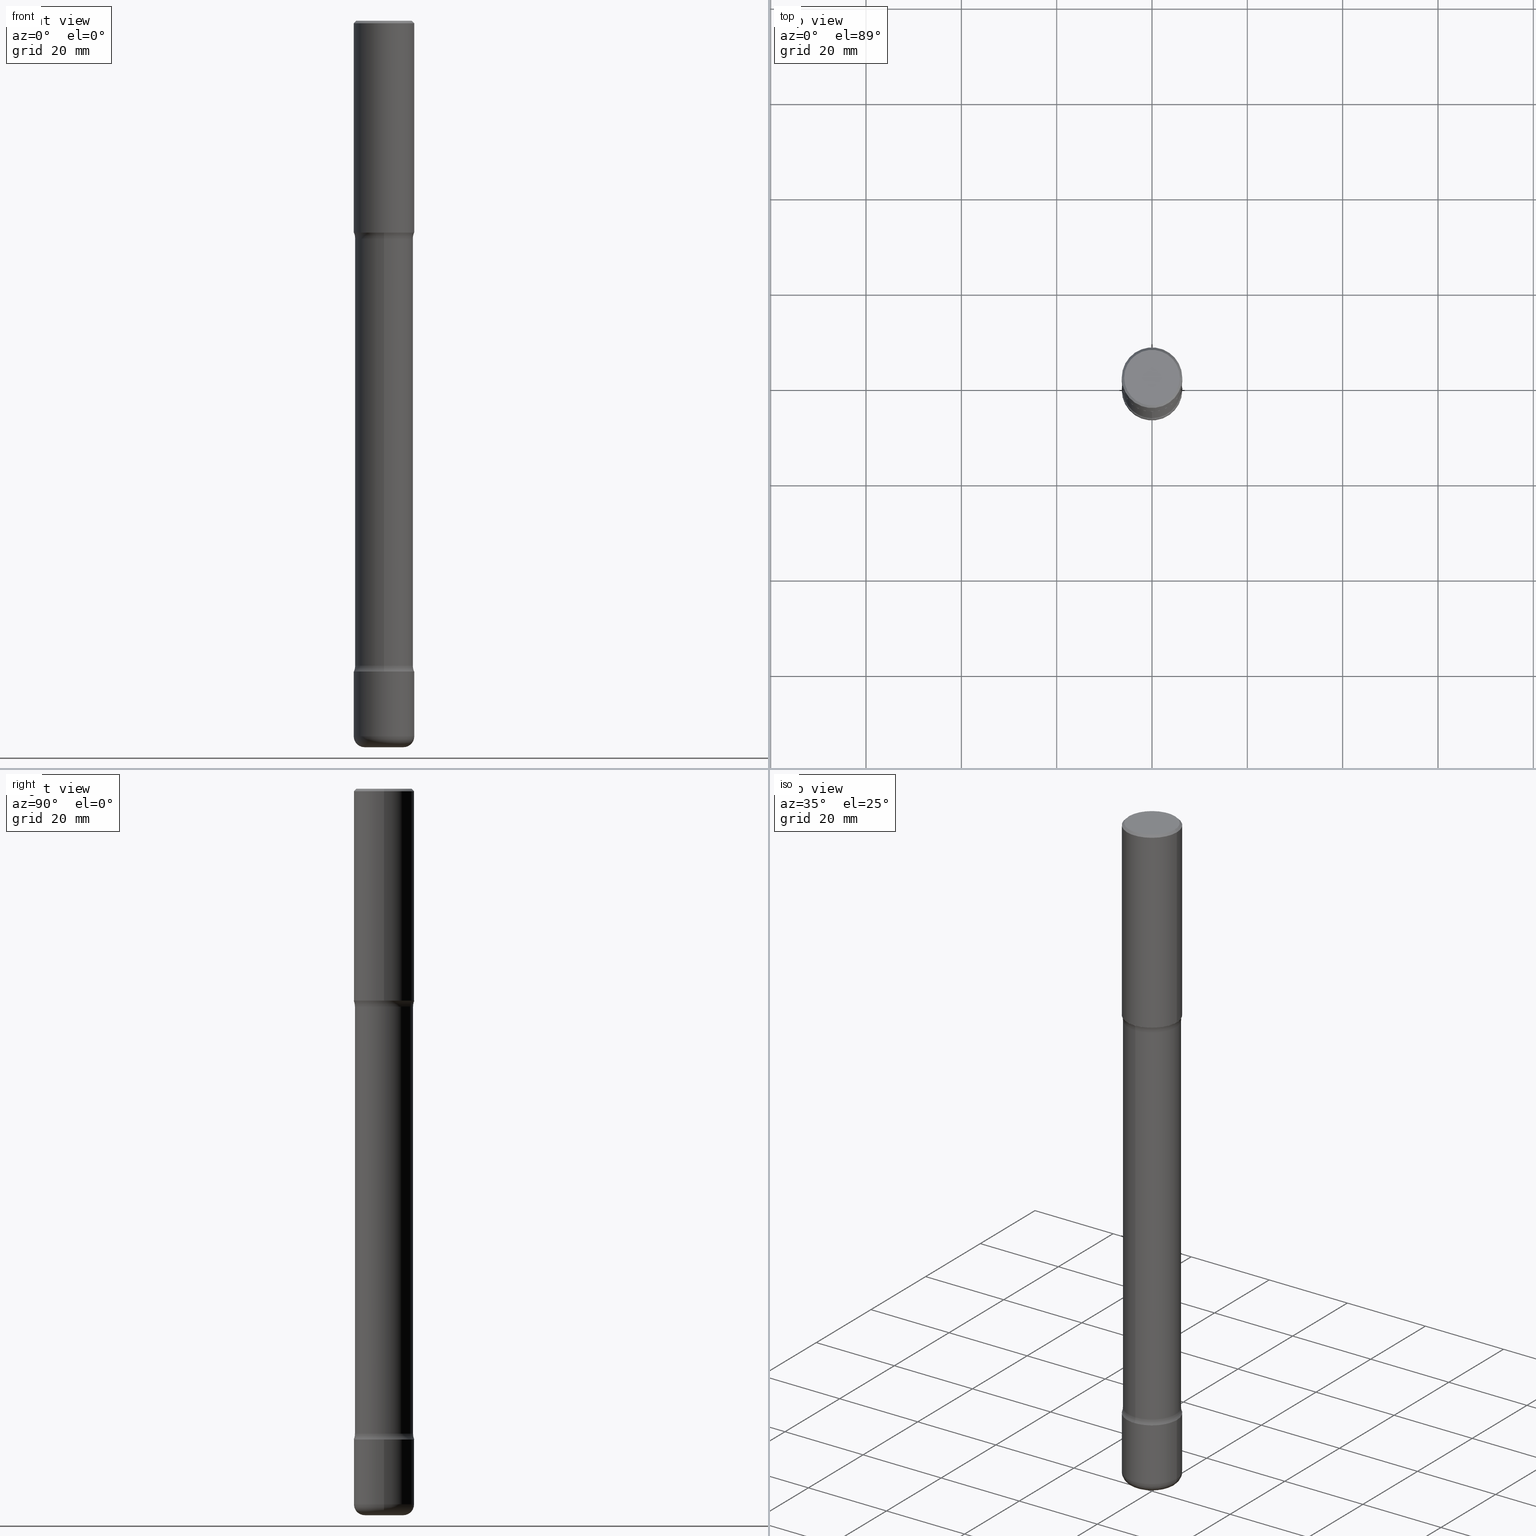
[diagram: canonical four-view strip — front | top / right | iso, engineering-drawing reading convention]
A machine part, canonical four-view strip (front | top / right | iso — engineering-drawing reading convention). The complete STEP part file that produces these views, byte-faithful:
ISO-10303-21;
HEADER;
FILE_DESCRIPTION (( 'STEP AP203' ),
    '1' );
FILE_NAME ('36249.STEP',
    '2024-03-01T23:42:03',
    ( '' ),
    ( '' ),
    'SwSTEP 2.0',
    'SolidWorks 2023',
    '' );
FILE_SCHEMA (( 'CONFIG_CONTROL_DESIGN' ));
ENDSEC;

DATA;
#1 = CYLINDRICAL_SURFACE ( 'NONE', #385, 0.2500000000000003886 ) ;
#2 = CARTESIAN_POINT ( 'NONE',  ( 1.745740669421699206E-15, 0.2499999999999814315, -5.375000000000002665 ) ) ;
#3 = DIRECTION ( 'NONE',  ( 1.000000000000000000, -6.982962677686262766E-15, 0.000000000000000000 ) ) ;
#4 = DIRECTION ( 'NONE',  ( 2.598079946832093802E-29, -3.272933499350004920E-15, -1.000000000000000000 ) ) ;
#5 = CIRCLE ( 'NONE', #384, 0.2300000000000001210 ) ;
#6 = AXIS2_PLACEMENT_3D ( 'NONE', #272, #423, #556 ) ;
#7 = CARTESIAN_POINT ( 'NONE',  ( 1.467281283711082406E-28, -2.094888803305887902E-14, -6.000000000000001776 ) ) ;
#8 = ORIENTED_EDGE ( 'NONE', *, *, #299, .F. ) ;
#9 = ADVANCED_FACE ( 'NONE', ( #391 ), #127, .F. ) ;
#10 = DIMENSIONAL_EXPONENTS ( 1.000000000000000000, 0.000000000000000000, 0.000000000000000000, 0.000000000000000000, 0.000000000000000000, 0.000000000000000000, 0.000000000000000000 ) ;
#11 =( CONVERSION_BASED_UNIT ( 'INCH', #524 ) LENGTH_UNIT ( ) NAMED_UNIT ( #10 ) );
#12 = DIRECTION ( 'NONE',  ( -1.000000000000000000, 6.982962677686265922E-15, -4.876176775795935793E-29 ) ) ;
#13 = MANIFOLD_SOLID_BREP ( 'Body-Move/Copy2[4]', #37 ) ;
#14 = CARTESIAN_POINT ( 'NONE',  ( 4.890937612370285420E-31, -6.982962677686308865E-17, -0.02000000000000005246 ) ) ;
#15 = EDGE_LOOP ( 'NONE', ( #78, #550, #253, #234 ) ) ;
#16 = COORDINATED_UNIVERSAL_TIME_OFFSET ( 5, 0, .BEHIND. ) ;
#17 = ADVANCED_FACE ( 'NONE', ( #40 ), #514, .T. ) ;
#18 = CIRCLE ( 'NONE', #191, 0.2500000000000005551 ) ;
#19 = DIRECTION ( 'NONE',  ( 6.982962677686265922E-15, 1.000000000000000000, -3.272933499350004525E-15 ) ) ;
#20 = AXIS2_PLACEMENT_3D ( 'NONE', #202, #296, #76 ) ;
#21 = EDGE_LOOP ( 'NONE', ( #316, #111 ) ) ;
#22 = MECHANICAL_CONTEXT ( 'NONE', #89, 'mechanical' ) ;
#23 = DIRECTION ( 'NONE',  ( -2.445468806185136597E-29, 3.491481338843145583E-15, 1.000000000000000000 ) ) ;
#24 = ORIENTED_EDGE ( 'NONE', *, *, #136, .F. ) ;
#25 = DATE_TIME_ROLE ( 'classification_date' ) ;
#26 = EDGE_CURVE ( 'NONE', #405, #397, #441, .T. ) ;
#27 = DATE_AND_TIME ( #188, #82 ) ;
#28 = ORIENTED_EDGE ( 'NONE', *, *, #160, .T. ) ;
#29 = AXIS2_PLACEMENT_3D ( 'NONE', #529, #226, #308 ) ;
#30 = LOCAL_TIME ( 18, 42, 3.000000000000000000, #537 ) ;
#31 = VERTEX_POINT ( 'NONE', #221 ) ;
#32 = EDGE_LOOP ( 'NONE', ( #526, #503, #411, #165 ) ) ;
#33 = CARTESIAN_POINT ( 'NONE',  ( 4.279570410823991847E-29, -6.110092342975509404E-15, -1.750000000000001332 ) ) ;
#34 = VERTEX_POINT ( 'NONE', #280 ) ;
#35 = ADVANCED_FACE ( 'NONE', ( #519 ), #61, .T. ) ;
#36 = CARTESIAN_POINT ( 'NONE',  ( 1.675911042644833344E-15, 0.2399999999999813116, -5.326010205144338983 ) ) ;
#37 = CLOSED_SHELL ( 'NONE', ( #460, #9, #352, #455, #246, #475, #211, #482 ) ) ;
#38 =( GEOMETRIC_REPRESENTATION_CONTEXT ( 3 ) GLOBAL_UNCERTAINTY_ASSIGNED_CONTEXT ( ( #295 ) ) GLOBAL_UNIT_ASSIGNED_CONTEXT ( ( #11, #274, #491 ) ) REPRESENTATION_CONTEXT ( 'NONE', 'WORKASPACE' ) );
#39 = DIRECTION ( 'NONE',  ( 6.982962677686265922E-15, 1.000000000000000000, -4.553079989440439881E-15 ) ) ;
#40 = FACE_OUTER_BOUND ( 'NONE', #321, .T. ) ;
#41 = EDGE_CURVE ( 'NONE', #158, #31, #453, .T. ) ;
#42 = CARTESIAN_POINT ( 'NONE',  ( -3.261302786302777691E-29, -4.226060494179454767E-14, -5.375000000000000888 ) ) ;
#43 = DIRECTION ( 'NONE',  ( -2.445468806185136597E-29, 3.491481338843145583E-15, 1.000000000000000000 ) ) ;
#44 = CIRCLE ( 'NONE', #362, 0.2500000000000001110 ) ;
#45 = DIRECTION ( 'NONE',  ( 2.598079946832093802E-29, -3.272933499350004525E-15, -1.000000000000000000 ) ) ;
#46 = AXIS2_PLACEMENT_3D ( 'NONE', #58, #230, #398 ) ;
#47 = VERTEX_POINT ( 'NONE', #275 ) ;
#48 = DIRECTION ( 'NONE',  ( -6.982962677686267499E-15, -1.000000000000000000, 0.000000000000000000 ) ) ;
#49 = DIRECTION ( 'NONE',  ( 2.598079946832093802E-29, -3.272933499350004920E-15, -1.000000000000000000 ) ) ;
#50 = PERSON_AND_ORGANIZATION_ROLE ( 'design_owner' ) ;
#51 = CARTESIAN_POINT ( 'NONE',  ( 1.467281283711082406E-28, -2.094888803305887902E-14, -6.000000000000001776 ) ) ;
#52 = LINE ( 'NONE', #189, #65 ) ;
#53 = EDGE_CURVE ( 'NONE', #251, #142, #225, .T. ) ;
#54 = AXIS2_PLACEMENT_3D ( 'NONE', #327, #242, #63 ) ;
#55 = APPROVAL_PERSON_ORGANIZATION ( #374, #540, #410 ) ;
#56 = PLANE ( 'NONE',  #278 ) ;
#57 = ORIENTED_EDGE ( 'NONE', *, *, #160, .F. ) ;
#58 = CARTESIAN_POINT ( 'NONE',  ( 0.000000000000000000, 0.000000000000000000, 0.000000000000000000 ) ) ;
#59 = DIRECTION ( 'NONE',  ( 1.000000000000000000, -6.982962677686267499E-15, 4.876176775795935793E-29 ) ) ;
#60 = ORIENTED_EDGE ( 'NONE', *, *, #113, .T. ) ;
#61 = PLANE ( 'NONE',  #522 ) ;
#62 = EDGE_CURVE ( 'NONE', #47, #371, #177, .T. ) ;
#63 = DIRECTION ( 'NONE',  ( 6.982962677686265922E-15, 1.000000000000000000, -3.272933499350004920E-15 ) ) ;
#64 = COORDINATED_UNIVERSAL_TIME_OFFSET ( 5, 0, .BEHIND. ) ;
#65 = VECTOR ( 'NONE', #438, 39.37007874015748854 ) ;
#66 = FACE_OUTER_BOUND ( 'NONE', #451, .T. ) ;
#67 = AXIS2_PLACEMENT_3D ( 'NONE', #269, #172, #471 ) ;
#68 = DIRECTION ( 'NONE',  ( -2.445468806185136597E-29, 3.491481338843145583E-15, 1.000000000000000000 ) ) ;
#69 = VERTEX_POINT ( 'NONE', #2 ) ;
#70 = SHAPE_DEFINITION_REPRESENTATION ( #458, #488 ) ;
#71 = ORIENTED_EDGE ( 'NONE', *, *, #325, .F. ) ;
#72 = ORIENTED_EDGE ( 'NONE', *, *, #543, .F. ) ;
#73 = AXIS2_PLACEMENT_3D ( 'NONE', #444, #4, #183 ) ;
#74 = SECURITY_CLASSIFICATION ( '', '', #527 ) ;
#75 = ORIENTED_EDGE ( 'NONE', *, *, #77, .F. ) ;
#76 = DIRECTION ( 'NONE',  ( 6.982962677686265922E-15, 1.000000000000000000, -3.278217592397102057E-15 ) ) ;
#77 = EDGE_CURVE ( 'NONE', #219, #112, #521, .T. ) ;
#78 = ORIENTED_EDGE ( 'NONE', *, *, #470, .T. ) ;
#79 = CARTESIAN_POINT ( 'NONE',  ( -1.680822009453992684E-15, -0.2400000000000076239, -1.798989794855665236 ) ) ;
#80 = DIRECTION ( 'NONE',  ( 1.000000000000000000, -6.860497997771530774E-15, 4.843475318745101421E-29 ) ) ;
#81 = CIRCLE ( 'NONE', #430, 0.2500000000000002776 ) ;
#82 = LOCAL_TIME ( 18, 42, 3.000000000000000000, #16 ) ;
#83 = CARTESIAN_POINT ( 'NONE',  ( 1.314439483324511369E-28, -1.876671219628191278E-14, -5.375000000000001776 ) ) ;
#84 = EDGE_CURVE ( 'NONE', #142, #150, #239, .T. ) ;
#85 = CYLINDRICAL_SURFACE ( 'NONE', #303, 0.2400000000000002409 ) ;
#86 = VERTEX_POINT ( 'NONE', #528 ) ;
#87 = DIRECTION ( 'NONE',  ( 2.598079946832093802E-29, -3.272933499350004920E-15, -1.000000000000000000 ) ) ;
#88 = DIRECTION ( 'NONE',  ( -2.445468806185136877E-29, 3.491481338843145188E-15, 1.000000000000000000 ) ) ;
#89 = APPLICATION_CONTEXT ( 'configuration controlled 3d designs of mechanical parts and assemblies' ) ;
#90 = DIRECTION ( 'NONE',  ( 1.000000000000000000, -6.982962677686267499E-15, 4.876176775795935793E-29 ) ) ;
#91 = VECTOR ( 'NONE', #88, 39.37007874015748143 ) ;
#92 = DIRECTION ( 'NONE',  ( 1.000000000000000000, -6.982962677686267499E-15, 4.876176775795936353E-29 ) ) ;
#93 = ORIENTED_EDGE ( 'NONE', *, *, #494, .F. ) ;
#94 = FACE_OUTER_BOUND ( 'NONE', #32, .T. ) ;
#95 = ADVANCED_FACE ( 'NONE', ( #354 ), #185, .T. ) ;
#96 = PERSON_AND_ORGANIZATION ( #379, #240 ) ;
#97 = CARTESIAN_POINT ( 'NONE',  ( 2.548781377355529317E-15, 0.3649999999999934408, -1.798989794855667235 ) ) ;
#98 = CARTESIAN_POINT ( 'NONE',  ( 0.000000000000000000, 0.000000000000000000, 0.000000000000000000 ) ) ;
#99 = EDGE_LOOP ( 'NONE', ( #409, #337, #190, #416 ) ) ;
#100 = DIRECTION ( 'NONE',  ( -2.445468806185136597E-29, 3.491481338843145583E-15, 1.000000000000000000 ) ) ;
#101 = DIRECTION ( 'NONE',  ( 2.598079946832093802E-29, -3.272933499350004525E-15, -1.000000000000000000 ) ) ;
#102 = AXIS2_PLACEMENT_3D ( 'NONE', #98, #196, #92 ) ;
#103 = EDGE_CURVE ( 'NONE', #251, #34, #406, .T. ) ;
#104 = APPROVAL_ROLE ( '' ) ;
#105 = DIRECTION ( 'NONE',  ( 2.598079946832093802E-29, -3.272933499350004920E-15, -1.000000000000000000 ) ) ;
#106 = PLANE ( 'NONE',  #118 ) ;
#107 = EDGE_LOOP ( 'NONE', ( #424, #349, #466, #227 ) ) ;
#108 = DATE_AND_TIME ( #181, #30 ) ;
#109 = DIRECTION ( 'NONE',  ( 1.000000000000000000, -6.982962677686273021E-15, 4.883557194083115143E-29 ) ) ;
#110 = AXIS2_PLACEMENT_3D ( 'NONE', #42, #304, #426 ) ;
#111 = ORIENTED_EDGE ( 'NONE', *, *, #510, .F. ) ;
#112 = VERTEX_POINT ( 'NONE', #215 ) ;
#113 = EDGE_CURVE ( 'NONE', #223, #47, #547, .T. ) ;
#114 = ORIENTED_EDGE ( 'NONE', *, *, #443, .F. ) ;
#115 = CALENDAR_DATE ( 2024, 1, 3 ) ;
#116 = EDGE_LOOP ( 'NONE', ( #195, #24 ) ) ;
#117 = ORIENTED_EDGE ( 'NONE', *, *, #169, .T. ) ;
#118 = AXIS2_PLACEMENT_3D ( 'NONE', #298, #420, #19 ) ;
#119 = CIRCLE ( 'NONE', #67, 0.2500000000000001110 ) ;
#120 = EDGE_CURVE ( 'NONE', #236, #86, #18, .T. ) ;
#121 = APPLICATION_CONTEXT ( 'configuration controlled 3d designs of mechanical parts and assemblies' ) ;
#122 = FACE_OUTER_BOUND ( 'NONE', #21, .T. ) ;
#123 = CARTESIAN_POINT ( 'NONE',  ( -0.1600000000000005584, -1.949778633534683129E-14, -5.910000000000001030 ) ) ;
#124 = ORIENTED_EDGE ( 'NONE', *, *, #257, .T. ) ;
#125 = DIRECTION ( 'NONE',  ( 2.438088387897960049E-29, -3.491481338843145188E-15, -1.000000000000000000 ) ) ;
#126 = EDGE_CURVE ( 'NONE', #251, #405, #421, .T. ) ;
#127 = TOROIDAL_SURFACE ( 'NONE', #156, 0.3650000000000001577, 0.1250000000000000555 ) ;
#128 = CC_DESIGN_SECURITY_CLASSIFICATION ( #74, ( #498 ) ) ;
#129 = FACE_OUTER_BOUND ( 'NONE', #330, .T. ) ;
#130 = ORIENTED_EDGE ( 'NONE', *, *, #283, .T. ) ;
#131 = LINE ( 'NONE', #473, #91 ) ;
#132 = CARTESIAN_POINT ( 'NONE',  ( 2.548781377355618064E-15, 0.3649999999999815614, -5.326010205144338983 ) ) ;
#133 = CARTESIAN_POINT ( 'NONE',  ( 1.314439483324511369E-28, -1.876671219628191278E-14, -5.375000000000001776 ) ) ;
#134 = ORIENTED_EDGE ( 'NONE', *, *, #113, .F. ) ;
#135 = EDGE_LOOP ( 'NONE', ( #60, #297 ) ) ;
#136 = EDGE_CURVE ( 'NONE', #205, #483, #467, .T. ) ;
#137 = CLOSED_SHELL ( 'NONE', ( #95, #198, #35, #241, #393, #381 ) ) ;
#138 = CARTESIAN_POINT ( 'NONE',  ( 1.745740669421611445E-15, 0.2499999999999941158, -1.750000000000001998 ) ) ;
#139 = VECTOR ( 'NONE', #45, 39.37007874015748143 ) ;
#140 = ORIENTED_EDGE ( 'NONE', *, *, #494, .T. ) ;
#141 = DATE_AND_TIME ( #194, #363 ) ;
#142 = VERTEX_POINT ( 'NONE', #254 ) ;
#143 = DIRECTION ( 'NONE',  ( -2.445468806185136597E-29, 3.491481338843145583E-15, 1.000000000000000000 ) ) ;
#144 = PRODUCT_DEFINITION ( 'UNKNOWN', '', #498, #344 ) ;
#145 = DIRECTION ( 'NONE',  ( 1.000000000000000000, -6.982962677686265922E-15, 4.876176775795935793E-29 ) ) ;
#146 = DIRECTION ( 'NONE',  ( 6.982962677686265922E-15, 1.000000000000000000, -4.370956789862816416E-15 ) ) ;
#147 = AXIS2_PLACEMENT_3D ( 'NONE', #545, #206, #109 ) ;
#148 = AXIS2_PLACEMENT_3D ( 'NONE', #383, #554, #212 ) ;
#149 = CARTESIAN_POINT ( 'NONE',  ( 3.874772629991013764E-29, -7.032397495765489425E-15, -1.798989794855666124 ) ) ;
#150 = VERTEX_POINT ( 'NONE', #36 ) ;
#151 = PERSON_AND_ORGANIZATION ( #379, #240 ) ;
#152 = DIRECTION ( 'NONE',  ( 1.000000000000000000, -6.982962677686267499E-15, 0.000000000000000000 ) ) ;
#153 = APPLICATION_PROTOCOL_DEFINITION ( 'international standard', 'config_control_design', 1994, #89 ) ;
#154 = DIRECTION ( 'NONE',  ( -6.982962677686266711E-15, -1.000000000000000000, 3.491481338843145583E-15 ) ) ;
#155 = ADVANCED_FACE ( 'NONE', ( #208 ), #511, .T. ) ;
#156 = AXIS2_PLACEMENT_3D ( 'NONE', #213, #311, #435 ) ;
#157 = PRODUCT ( '36249', '36249', '', ( #22 ) ) ;
#158 = VERTEX_POINT ( 'NONE', #392 ) ;
#159 = ORIENTED_EDGE ( 'NONE', *, *, #291, .T. ) ;
#160 = EDGE_CURVE ( 'NONE', #318, #69, #555, .T. ) ;
#161 = CARTESIAN_POINT ( 'NONE',  ( 1.314439483324511369E-28, -1.876671219628191278E-14, -5.375000000000001776 ) ) ;
#162 = CIRCLE ( 'NONE', #541, 0.1600000000000005584 ) ;
#163 = CC_DESIGN_DATE_AND_TIME_ASSIGNMENT ( #27, #25, ( #74 ) ) ;
#164 = CARTESIAN_POINT ( 'NONE',  ( -1.715124499442752926E-15, -0.2500000000000189293, -5.375000000000000888 ) ) ;
#165 = ORIENTED_EDGE ( 'NONE', *, *, #335, .T. ) ;
#166 = CARTESIAN_POINT ( 'NONE',  ( 0.1600000000000005584, -2.206616206148868232E-14, -6.000000000000001776 ) ) ;
#167 = DIRECTION ( 'NONE',  ( 1.000000000000000000, -6.982962677686262766E-15, 0.000000000000000000 ) ) ;
#168 = PLANE ( 'NONE',  #248 ) ;
#169 = EDGE_CURVE ( 'NONE', #223, #112, #52, .T. ) ;
#170 = AXIS2_PLACEMENT_3D ( 'NONE', #133, #310, #485 ) ;
#171 = APPROVAL_PERSON_ORGANIZATION ( #151, #340, #481 ) ;
#172 = DIRECTION ( 'NONE',  ( -2.445468806185136597E-29, 3.491481338843145583E-15, 1.000000000000000000 ) ) ;
#173 = DIRECTION ( 'NONE',  ( -2.445468806185136597E-29, 3.491481338843145583E-15, 1.000000000000000000 ) ) ;
#174 = CARTESIAN_POINT ( 'NONE',  ( 1.314439483324511369E-28, -1.876671219628191278E-14, -5.375000000000001776 ) ) ;
#175 = ADVANCED_FACE ( 'NONE', ( #315 ), #56, .F. ) ;
#176 = DIRECTION ( 'NONE',  ( -1.000000000000000000, 7.105427357601017636E-15, 0.000000000000000000 ) ) ;
#177 = LINE ( 'NONE', #433, #497 ) ;
#178 = DIRECTION ( 'NONE',  ( 2.445468806185136597E-29, -3.491481338843145583E-15, -1.000000000000000000 ) ) ;
#179 = ORIENTED_EDGE ( 'NONE', *, *, #373, .T. ) ;
#180 = AXIS2_PLACEMENT_3D ( 'NONE', #14, #178, #358 ) ;
#181 = CALENDAR_DATE ( 2024, 1, 3 ) ;
#182 = CIRCLE ( 'NONE', #523, 0.2500000000000010547 ) ;
#183 = DIRECTION ( 'NONE',  ( 6.982962677686265922E-15, 1.000000000000000000, -4.553079989440439881E-15 ) ) ;
#184 = DIRECTION ( 'NONE',  ( 1.000000000000000000, -6.982962677686273021E-15, 4.883557194083115143E-29 ) ) ;
#185 = CYLINDRICAL_SURFACE ( 'NONE', #329, 0.2500000000000003886 ) ;
#186 = EDGE_CURVE ( 'NONE', #318, #142, #286, .T. ) ;
#187 = DIRECTION ( 'NONE',  ( -2.438088387897960049E-29, 3.491481338843145188E-15, 1.000000000000000000 ) ) ;
#188 = CALENDAR_DATE ( 2024, 1, 3 ) ;
#189 = CARTESIAN_POINT ( 'NONE',  ( -0.2500000000000001110, 1.675911042644704563E-15, -0.02000000000000005246 ) ) ;
#190 = ORIENTED_EDGE ( 'NONE', *, *, #510, .T. ) ;
#191 = AXIS2_PLACEMENT_3D ( 'NONE', #334, #259, #167 ) ;
#192 = CC_DESIGN_APPROVAL ( #540, ( #74 ) ) ;
#193 = FACE_OUTER_BOUND ( 'NONE', #413, .T. ) ;
#194 = CALENDAR_DATE ( 2024, 1, 3 ) ;
#195 = ORIENTED_EDGE ( 'NONE', *, *, #201, .F. ) ;
#196 = DIRECTION ( 'NONE',  ( -2.445468806185136597E-29, 3.491481338843145583E-15, 1.000000000000000000 ) ) ;
#197 = ORIENTED_EDGE ( 'NONE', *, *, #228, .F. ) ;
#198 = ADVANCED_FACE ( 'NONE', ( #474 ), #322, .T. ) ;
#199 = COORDINATED_UNIVERSAL_TIME_OFFSET ( 5, 0, .BEHIND. ) ;
#200 = AXIS2_PLACEMENT_3D ( 'NONE', #233, #80, #342 ) ;
#201 = EDGE_CURVE ( 'NONE', #483, #205, #162, .T. ) ;
#202 = CARTESIAN_POINT ( 'NONE',  ( 3.726355025978772891E-29, -6.902328261138143864E-15, -1.750000000000001332 ) ) ;
#203 = ORIENTED_EDGE ( 'NONE', *, *, #325, .T. ) ;
#204 = DATE_AND_TIME ( #115, #370 ) ;
#205 = VERTEX_POINT ( 'NONE', #332 ) ;
#206 = DIRECTION ( 'NONE',  ( -2.445468806185136597E-29, 3.491481338843145583E-15, 1.000000000000000000 ) ) ;
#207 = AXIS2_PLACEMENT_3D ( 'NONE', #428, #43, #559 ) ;
#208 = FACE_OUTER_BOUND ( 'NONE', #508, .T. ) ;
#209 = AXIS2_PLACEMENT_3D ( 'NONE', #380, #552, #217 ) ;
#210 = DIRECTION ( 'NONE',  ( 1.000000000000000000, -6.982962677686269077E-15, 0.000000000000000000 ) ) ;
#211 = ADVANCED_FACE ( 'NONE', ( #193 ), #256, .F. ) ;
#212 = DIRECTION ( 'NONE',  ( 6.982962677686265922E-15, 1.000000000000000000, -3.414809992080321627E-15 ) ) ;
#213 = CARTESIAN_POINT ( 'NONE',  ( 1.302459181810417859E-28, -1.859566524174961022E-14, -5.326010205144338094 ) ) ;
#214 = CARTESIAN_POINT ( 'NONE',  ( -3.261302786302777691E-29, -4.226060494179454767E-14, -5.375000000000000888 ) ) ;
#215 = CARTESIAN_POINT ( 'NONE',  ( -0.2500000000000001110, 1.675911042644704563E-15, -0.02000000000000005246 ) ) ;
#216 = CIRCLE ( 'NONE', #266, 0.2399999999999999356 ) ;
#217 = DIRECTION ( 'NONE',  ( 6.982962677686265922E-15, 1.000000000000000000, -4.553079989440434359E-15 ) ) ;
#218 = EDGE_CURVE ( 'NONE', #236, #31, #365, .T. ) ;
#219 = VERTEX_POINT ( 'NONE', #492 ) ;
#220 = PLANE ( 'NONE',  #454 ) ;
#221 = CARTESIAN_POINT ( 'NONE',  ( 0.2500000000000002776, -2.051245286570348262E-14, -5.375000000000001776 ) ) ;
#222 = DIRECTION ( 'NONE',  ( 6.982962677686265922E-15, 1.000000000000000000, -4.370956789862816416E-15 ) ) ;
#223 = VERTEX_POINT ( 'NONE', #372 ) ;
#224 = COORDINATED_UNIVERSAL_TIME_OFFSET ( 5, 0, .BEHIND. ) ;
#225 = LINE ( 'NONE', #447, #302 ) ;
#226 = DIRECTION ( 'NONE',  ( 1.000000000000000000, -6.860497997771530774E-15, 4.843475318745101421E-29 ) ) ;
#227 = ORIENTED_EDGE ( 'NONE', *, *, #306, .F. ) ;
#228 = EDGE_CURVE ( 'NONE', #47, #223, #5, .T. ) ;
#229 = AXIS2_PLACEMENT_3D ( 'NONE', #525, #320, #184 ) ;
#230 = DIRECTION ( 'NONE',  ( 0.000000000000000000, 0.000000000000000000, 1.000000000000000000 ) ) ;
#231 = ORIENTED_EDGE ( 'NONE', *, *, #120, .T. ) ;
#232 = DATE_TIME_ROLE ( 'creation_date' ) ;
#233 = CARTESIAN_POINT ( 'NONE',  ( -2.504081769186573506E-15, -0.3650000000000074851, -1.798989794855665014 ) ) ;
#234 = ORIENTED_EDGE ( 'NONE', *, *, #517, .F. ) ;
#235 = CARTESIAN_POINT ( 'NONE',  ( 4.279570410823991847E-29, -6.110092342975509404E-15, -1.750000000000001332 ) ) ;
#236 = VERTEX_POINT ( 'NONE', #281 ) ;
#237 = APPROVAL_STATUS ( 'not_yet_approved' ) ;
#238 = CARTESIAN_POINT ( 'NONE',  ( 4.890937612370285420E-31, -6.982962677686308865E-17, -0.02000000000000005246 ) ) ;
#239 = CIRCLE ( 'NONE', #73, 0.2399999999999999356 ) ;
#240 = ORGANIZATION ( 'UNSPECIFIED', 'UNSPECIFIED', '' ) ;
#241 = ADVANCED_FACE ( 'NONE', ( #506 ), #341, .T. ) ;
#242 = DIRECTION ( 'NONE',  ( 2.598079946832093802E-29, -3.272933499350004920E-15, -1.000000000000000000 ) ) ;
#243 = ORIENTED_EDGE ( 'NONE', *, *, #417, .F. ) ;
#244 = DIRECTION ( 'NONE',  ( -2.445468806185136597E-29, 3.491481338843145583E-15, 1.000000000000000000 ) ) ;
#245 = ORIENTED_EDGE ( 'NONE', *, *, #84, .T. ) ;
#246 = ADVANCED_FACE ( 'NONE', ( #122 ), #106, .F. ) ;
#247 = AXIS2_PLACEMENT_3D ( 'NONE', #472, #87, #263 ) ;
#248 = AXIS2_PLACEMENT_3D ( 'NONE', #432, #512, #339 ) ;
#249 = PRODUCT_RELATED_PRODUCT_CATEGORY ( 'detail', '', ( #157 ) ) ;
#250 = EDGE_LOOP ( 'NONE', ( #71, #243 ) ) ;
#251 = VERTEX_POINT ( 'NONE', #79 ) ;
#252 = DIRECTION ( 'NONE',  ( 1.000000000000000000, -6.982962677686265922E-15, 4.876225828469306079E-29 ) ) ;
#253 = ORIENTED_EDGE ( 'NONE', *, *, #283, .F. ) ;
#254 = CARTESIAN_POINT ( 'NONE',  ( -1.680822009453894274E-15, -0.2400000000000185318, -5.326010205144336318 ) ) ;
#255 = DIRECTION ( 'NONE',  ( 1.000000000000000000, -6.982962677686259611E-15, 0.000000000000000000 ) ) ;
#256 = TOROIDAL_SURFACE ( 'NONE', #54, 0.3650000000000001577, 0.1250000000000000555 ) ;
#257 = EDGE_CURVE ( 'NONE', #31, #158, #81, .T. ) ;
#258 = CIRCLE ( 'NONE', #499, 0.1250000000000000555 ) ;
#259 = DIRECTION ( 'NONE',  ( -2.445468806185136597E-29, 3.491481338843145583E-15, 1.000000000000000000 ) ) ;
#260 = DIRECTION ( 'NONE',  ( 7.105427357601001859E-15, 1.000000000000000000, -3.491481338843145583E-15 ) ) ;
#261 = ORIENTED_EDGE ( 'NONE', *, *, #77, .T. ) ;
#262 = FACE_OUTER_BOUND ( 'NONE', #292, .T. ) ;
#263 = DIRECTION ( 'NONE',  ( 6.982962677686265922E-15, 1.000000000000000000, -3.414809992080321627E-15 ) ) ;
#264 = ADVANCED_FACE ( 'NONE', ( #408 ), #532, .T. ) ;
#265 = CARTESIAN_POINT ( 'NONE',  ( 3.726355025978772891E-29, -6.902328261138143864E-15, -1.750000000000001332 ) ) ;
#266 = AXIS2_PLACEMENT_3D ( 'NONE', #535, #549, #39 ) ;
#267 = ORIENTED_EDGE ( 'NONE', *, *, #62, .F. ) ;
#268 = AXIS2_PLACEMENT_3D ( 'NONE', #495, #244, #288 ) ;
#269 = CARTESIAN_POINT ( 'NONE',  ( 4.890937612370285420E-31, -6.982962677686308865E-17, -0.02000000000000005246 ) ) ;
#270 = DIRECTION ( 'NONE',  ( -6.982962677686266711E-15, -1.000000000000000000, 0.000000000000000000 ) ) ;
#271 = ORIENTED_EDGE ( 'NONE', *, *, #443, .T. ) ;
#272 = CARTESIAN_POINT ( 'NONE',  ( 3.874772629991013764E-29, -7.032397495765489425E-15, -1.798989794855666124 ) ) ;
#273 = DIRECTION ( 'NONE',  ( -1.000000000000000000, 6.982962677686265922E-15, -4.883557194083112901E-29 ) ) ;
#274 =( NAMED_UNIT ( * ) PLANE_ANGLE_UNIT ( ) SI_UNIT ( $, .RADIAN. ) );
#275 = CARTESIAN_POINT ( 'NONE',  ( 0.2300000000000001210, -1.681434332853599997E-15, 4.268512490111905999E-18 ) ) ;
#276 = CC_DESIGN_DATE_AND_TIME_ASSIGNMENT ( #531, #232, ( #144 ) ) ;
#277 = ORIENTED_EDGE ( 'NONE', *, *, #551, .T. ) ;
#278 = AXIS2_PLACEMENT_3D ( 'NONE', #235, #187, #145 ) ;
#279 = PERSON_AND_ORGANIZATION ( #379, #240 ) ;
#280 = CARTESIAN_POINT ( 'NONE',  ( -1.715124499442852322E-15, -0.2500000000000079381, -1.750000000000000444 ) ) ;
#281 = CARTESIAN_POINT ( 'NONE',  ( 0.2500000000000006661, -2.238039538198456243E-14, -5.910000000000001030 ) ) ;
#282 = ORIENTED_EDGE ( 'NONE', *, *, #169, .F. ) ;
#283 = EDGE_CURVE ( 'NONE', #150, #142, #216, .T. ) ;
#284 = DIRECTION ( 'NONE',  ( 2.445468806185136597E-29, -3.491481338843145583E-15, -1.000000000000000000 ) ) ;
#285 = ORIENTED_EDGE ( 'NONE', *, *, #543, .T. ) ;
#286 = CIRCLE ( 'NONE', #29, 0.1250000000000000555 ) ;
#287 = CIRCLE ( 'NONE', #542, 0.2500000000000005551 ) ;
#288 = DIRECTION ( 'NONE',  ( 1.000000000000000000, -6.982962677686267499E-15, 4.876176775795936353E-29 ) ) ;
#289 = ORIENTED_EDGE ( 'NONE', *, *, #41, .T. ) ;
#290 = VERTEX_POINT ( 'NONE', #448 ) ;
#291 = EDGE_CURVE ( 'NONE', #371, #112, #44, .T. ) ;
#292 = EDGE_LOOP ( 'NONE', ( #8, #277, #544, #553 ) ) ;
#293 = AXIS2_PLACEMENT_3D ( 'NONE', #238, #284, #490 ) ;
#294 = AXIS2_PLACEMENT_3D ( 'NONE', #123, #260, #176 ) ;
#295 = UNCERTAINTY_MEASURE_WITH_UNIT (LENGTH_MEASURE( 1.000000000000000082E-05 ), #11, 'distance_accuracy_value', 'NONE');
#296 = DIRECTION ( 'NONE',  ( 2.598079946832093802E-29, -3.272933499350004920E-15, -1.000000000000000000 ) ) ;
#297 = ORIENTED_EDGE ( 'NONE', *, *, #228, .T. ) ;
#298 = CARTESIAN_POINT ( 'NONE',  ( 4.279570410823991847E-29, -6.110092342975509404E-15, -1.750000000000001332 ) ) ;
#299 = EDGE_CURVE ( 'NONE', #86, #158, #326, .T. ) ;
#300 = ORIENTED_EDGE ( 'NONE', *, *, #186, .T. ) ;
#301 = DIRECTION ( 'NONE',  ( 2.598079946832093802E-29, -3.272933499350004920E-15, -1.000000000000000000 ) ) ;
#302 = VECTOR ( 'NONE', #101, 39.37007874015748143 ) ;
#303 = AXIS2_PLACEMENT_3D ( 'NONE', #307, #343, #516 ) ;
#304 = DIRECTION ( 'NONE',  ( -2.598079946832093241E-29, 3.272933499350004525E-15, 1.000000000000000000 ) ) ;
#305 = CARTESIAN_POINT ( 'NONE',  ( -1.043851414335219820E-46, 1.490343170380447200E-32, 4.268512490100411279E-18 ) ) ;
#306 = EDGE_CURVE ( 'NONE', #483, #236, #333, .T. ) ;
#307 = CARTESIAN_POINT ( 'NONE',  ( 1.476819480001517141E-28, -2.081229563337566536E-14, -6.000000000000001776 ) ) ;
#308 = DIRECTION ( 'NONE',  ( 6.860497997771530774E-15, 1.000000000000000000, 0.000000000000000000 ) ) ;
#309 = DIRECTION ( 'NONE',  ( 6.982962677686265922E-15, 1.000000000000000000, -3.272933499350004920E-15 ) ) ;
#310 = DIRECTION ( 'NONE',  ( -2.445468806185136597E-29, 3.491481338843145583E-15, 1.000000000000000000 ) ) ;
#311 = DIRECTION ( 'NONE',  ( 2.598079946832093802E-29, -3.272933499350004920E-15, -1.000000000000000000 ) ) ;
#312 = AXIS2_PLACEMENT_3D ( 'NONE', #305, #515, #546 ) ;
#313 = AXIS2_PLACEMENT_3D ( 'NONE', #480, #173, #210 ) ;
#314 = CARTESIAN_POINT ( 'NONE',  ( 0.2500000000000001110, -1.784954126219746583E-15, -0.02000000000000005246 ) ) ;
#315 = FACE_OUTER_BOUND ( 'NONE', #250, .T. ) ;
#316 = ORIENTED_EDGE ( 'NONE', *, *, #335, .F. ) ;
#317 = ADVANCED_FACE ( 'NONE', ( #66 ), #538, .T. ) ;
#318 = VERTEX_POINT ( 'NONE', #164 ) ;
#319 = PERSON_AND_ORGANIZATION_ROLE ( 'classification_officer' ) ;
#320 = DIRECTION ( 'NONE',  ( -2.445468806185136597E-29, 3.491481338843145583E-15, 1.000000000000000000 ) ) ;
#321 = EDGE_LOOP ( 'NONE', ( #203, #261, #368, #93 ) ) ;
#322 = TOROIDAL_SURFACE ( 'NONE', #229, 0.1600000000000005584, 0.09000000000000020484 ) ;
#323 = AXIS2_PLACEMENT_3D ( 'NONE', #83, #439, #146 ) ;
#324 = DIRECTION ( 'NONE',  ( 1.000000000000000000, -6.982962677686270655E-15, 0.000000000000000000 ) ) ;
#325 = EDGE_CURVE ( 'NONE', #290, #219, #396, .T. ) ;
#326 = LINE ( 'NONE', #404, #504 ) ;
#327 = CARTESIAN_POINT ( 'NONE',  ( 1.302459181810417859E-28, -1.859566524174961022E-14, -5.326010205144338094 ) ) ;
#328 = EDGE_LOOP ( 'NONE', ( #530, #539, #487, #436 ) ) ;
#329 = AXIS2_PLACEMENT_3D ( 'NONE', #357, #143, #59 ) ;
#330 = EDGE_LOOP ( 'NONE', ( #285, #28 ) ) ;
#331 = ORIENTED_EDGE ( 'NONE', *, *, #373, .F. ) ;
#332 = CARTESIAN_POINT ( 'NONE',  ( -0.1600000000000005584, -1.933515876450272677E-14, -6.000000000000001776 ) ) ;
#333 = CIRCLE ( 'NONE', #378, 0.09000000000000020484 ) ;
#334 = CARTESIAN_POINT ( 'NONE',  ( 1.445272064455416016E-28, -2.063465471256299260E-14, -5.910000000000001030 ) ) ;
#335 = EDGE_CURVE ( 'NONE', #397, #34, #478, .T. ) ;
#336 = CARTESIAN_POINT ( 'NONE',  ( -1.043851414335219820E-46, 1.490343170380447200E-32, 4.268512490100411279E-18 ) ) ;
#337 = ORIENTED_EDGE ( 'NONE', *, *, #103, .T. ) ;
#338 = CYLINDRICAL_SURFACE ( 'NONE', #209, 0.2400000000000002409 ) ;
#339 = DIRECTION ( 'NONE',  ( -1.000000000000000000, 6.982962677686265922E-15, -4.876176775795935793E-29 ) ) ;
#340 = APPROVAL ( #237, 'UNSPECIFIED' ) ;
#341 = TOROIDAL_SURFACE ( 'NONE', #147, 0.1600000000000005584, 0.09000000000000020484 ) ;
#342 = DIRECTION ( 'NONE',  ( 6.860497997771529985E-15, 1.000000000000000000, 0.000000000000000000 ) ) ;
#343 = DIRECTION ( 'NONE',  ( 2.598079946832093802E-29, -3.272933499350004920E-15, -1.000000000000000000 ) ) ;
#344 = DESIGN_CONTEXT ( 'detailed design', #121, 'design' ) ;
#345 = EDGE_LOOP ( 'NONE', ( #124, #289 ) ) ;
#346 = FACE_OUTER_BOUND ( 'NONE', #328, .T. ) ;
#347 = DIRECTION ( 'NONE',  ( -1.000000000000000000, 6.982962677686265922E-15, -4.876176775795935793E-29 ) ) ;
#348 = DIRECTION ( 'NONE',  ( 2.438088387897960049E-29, -3.491481338843145188E-15, -1.000000000000000000 ) ) ;
#349 = ORIENTED_EDGE ( 'NONE', *, *, #360, .T. ) ;
#350 = VECTOR ( 'NONE', #376, 39.37007874015748143 ) ;
#351 = TOROIDAL_SURFACE ( 'NONE', #6, 0.3650000000000004907, 0.1250000000000000000 ) ;
#352 = ADVANCED_FACE ( 'NONE', ( #418 ), #505, .F. ) ;
#353 = PERSON_AND_ORGANIZATION ( #379, #240 ) ;
#354 = FACE_OUTER_BOUND ( 'NONE', #399, .T. ) ;
#355 = DIRECTION ( 'NONE',  ( -2.445468806185136597E-29, 3.491481338843145583E-15, 1.000000000000000000 ) ) ;
#356 = PERSON_AND_ORGANIZATION ( #379, #240 ) ;
#357 = CARTESIAN_POINT ( 'NONE',  ( 0.000000000000000000, 0.000000000000000000, 0.000000000000000000 ) ) ;
#358 = DIRECTION ( 'NONE',  ( -1.000000000000000000, 6.982962677686267499E-15, 0.000000000000000000 ) ) ;
#359 = APPROVAL_STATUS ( 'not_yet_approved' ) ;
#360 = EDGE_CURVE ( 'NONE', #205, #86, #486, .T. ) ;
#361 = DIRECTION ( 'NONE',  ( -2.445468806185136597E-29, 3.491481338843145583E-15, 1.000000000000000000 ) ) ;
#362 = AXIS2_PLACEMENT_3D ( 'NONE', #533, #23, #152 ) ;
#363 = LOCAL_TIME ( 18, 42, 3.000000000000000000, #64 ) ;
#364 = APPLICATION_PROTOCOL_DEFINITION ( 'international standard', 'config_control_design', 1994, #121 ) ;
#365 = LINE ( 'NONE', #412, #350 ) ;
#366 = PERSON_AND_ORGANIZATION_ROLE ( 'creator' ) ;
#367 = DIRECTION ( 'NONE',  ( 1.000000000000000000, -6.982962677686252511E-15, 0.000000000000000000 ) ) ;
#368 = ORIENTED_EDGE ( 'NONE', *, *, #291, .F. ) ;
#369 = ADVANCED_FACE ( 'NONE', ( #387 ), #168, .F. ) ;
#370 = LOCAL_TIME ( 18, 42, 3.000000000000000000, #199 ) ;
#371 = VERTEX_POINT ( 'NONE', #314 ) ;
#372 = CARTESIAN_POINT ( 'NONE',  ( -0.2300000000000001210, 1.640996229256273111E-15, 4.268512490089056766E-18 ) ) ;
#373 = EDGE_CURVE ( 'NONE', #69, #150, #258, .T. ) ;
#374 = PERSON_AND_ORGANIZATION ( #379, #240 ) ;
#375 = MANIFOLD_SOLID_BREP ( 'Body-Move/Copy2[1]', #137 ) ;
#376 = DIRECTION ( 'NONE',  ( -2.445468806185136877E-29, 3.491481338843145188E-15, 1.000000000000000000 ) ) ;
#377 = CLOSED_SHELL ( 'NONE', ( #17, #264, #155, #369, #175, #317 ) ) ;
#378 = AXIS2_PLACEMENT_3D ( 'NONE', #452, #154, #367 ) ;
#379 = PERSON ( 'UNSPECIFIED', 'UNSPECIFIED', 'UNSPECIFIED', ('UNSPECIFIED'), ('UNSPECIFIED'), ('UNSPECIFIED') ) ;
#380 = CARTESIAN_POINT ( 'NONE',  ( 1.476819480001517141E-28, -2.081229563337566536E-14, -6.000000000000001776 ) ) ;
#381 = ADVANCED_FACE ( 'NONE', ( #437 ), #220, .F. ) ;
#382 = FACE_OUTER_BOUND ( 'NONE', #15, .T. ) ;
#383 = CARTESIAN_POINT ( 'NONE',  ( 3.853634429592694340E-29, -7.062668601847533833E-15, -1.798989794855666124 ) ) ;
#384 = AXIS2_PLACEMENT_3D ( 'NONE', #336, #463, #252 ) ;
#385 = AXIS2_PLACEMENT_3D ( 'NONE', #520, #476, #90 ) ;
#386 = MANIFOLD_SOLID_BREP ( 'Body-Move/Copy2[2]', #377 ) ;
#387 = FACE_OUTER_BOUND ( 'NONE', #135, .T. ) ;
#388 = EDGE_LOOP ( 'NONE', ( #197, #501, #159, #282 ) ) ;
#389 = DIRECTION ( 'NONE',  ( -1.000000000000000000, 6.982962677686265922E-15, -4.883557194083112901E-29 ) ) ;
#390 = DIRECTION ( 'NONE',  ( 0.7071067811865469066, -7.319954787623252890E-15, -0.7071067811865479058 ) ) ;
#391 = FACE_OUTER_BOUND ( 'NONE', #459, .T. ) ;
#392 = CARTESIAN_POINT ( 'NONE',  ( -0.2500000000000002776, -1.792432661502220065E-14, -5.375000000000001776 ) ) ;
#393 = ADVANCED_FACE ( 'NONE', ( #262 ), #1, .T. ) ;
#394 = PERSON_AND_ORGANIZATION_ROLE ( 'design_supplier' ) ;
#395 = DIRECTION ( 'NONE',  ( -2.445468806185136877E-29, 3.491481338843145188E-15, 1.000000000000000000 ) ) ;
#396 = CIRCLE ( 'NONE', #415, 0.2500000000000003331 ) ;
#397 = VERTEX_POINT ( 'NONE', #138 ) ;
#398 = DIRECTION ( 'NONE',  ( 1.000000000000000000, 0.000000000000000000, 0.000000000000000000 ) ) ;
#399 = EDGE_LOOP ( 'NONE', ( #231, #445, #427, #449 ) ) ;
#400 = APPROVAL_DATE_TIME ( #108, #434 ) ;
#401 = CC_DESIGN_PERSON_AND_ORGANIZATION_ASSIGNMENT ( #279, #366, ( #498 ) ) ;
#402 = ORIENTED_EDGE ( 'NONE', *, *, #306, .T. ) ;
#403 = CALENDAR_DATE ( 2024, 1, 3 ) ;
#404 = CARTESIAN_POINT ( 'NONE',  ( -0.2500000000000003886, 1.776356839400253226E-15, -1.229733772563728407E-29 ) ) ;
#405 = VERTEX_POINT ( 'NONE', #560 ) ;
#406 = CIRCLE ( 'NONE', #200, 0.1250000000000000000 ) ;
#407 = APPROVAL_DATE_TIME ( #141, #340 ) ;
#408 = FACE_OUTER_BOUND ( 'NONE', #388, .T. ) ;
#409 = ORIENTED_EDGE ( 'NONE', *, *, #126, .F. ) ;
#410 = APPROVAL_ROLE ( '' ) ;
#411 = ORIENTED_EDGE ( 'NONE', *, *, #26, .T. ) ;
#412 = CARTESIAN_POINT ( 'NONE',  ( 0.2500000000000003886, -1.745740669421569636E-15, 1.219044193948985910E-29 ) ) ;
#413 = EDGE_LOOP ( 'NONE', ( #442, #72, #179, #130 ) ) ;
#414 = VECTOR ( 'NONE', #395, 39.37007874015748143 ) ;
#415 = AXIS2_PLACEMENT_3D ( 'NONE', #33, #68, #456 ) ;
#416 = ORIENTED_EDGE ( 'NONE', *, *, #26, .F. ) ;
#417 = EDGE_CURVE ( 'NONE', #219, #290, #548, .T. ) ;
#418 = FACE_OUTER_BOUND ( 'NONE', #99, .T. ) ;
#419 = AXIS2_PLACEMENT_3D ( 'NONE', #174, #49, #222 ) ;
#420 = DIRECTION ( 'NONE',  ( 2.598079946832093241E-29, -3.272933499350004525E-15, -1.000000000000000000 ) ) ;
#421 = CIRCLE ( 'NONE', #247, 0.2400000000000005185 ) ;
#422 = LOCAL_TIME ( 18, 42, 3.000000000000000000, #224 ) ;
#423 = DIRECTION ( 'NONE',  ( 2.598079946832093802E-29, -3.272933499350004920E-15, -1.000000000000000000 ) ) ;
#424 = ORIENTED_EDGE ( 'NONE', *, *, #201, .T. ) ;
#425 = CC_DESIGN_PERSON_AND_ORGANIZATION_ASSIGNMENT ( #353, #319, ( #74 ) ) ;
#426 = DIRECTION ( 'NONE',  ( -6.982962677686265922E-15, -1.000000000000000000, 3.272933499350004525E-15 ) ) ;
#427 = ORIENTED_EDGE ( 'NONE', *, *, #257, .F. ) ;
#428 = CARTESIAN_POINT ( 'NONE',  ( 1.467281283711082406E-28, -2.094888803305887902E-14, -6.000000000000001776 ) ) ;
#429 = LINE ( 'NONE', #518, #139 ) ;
#430 = AXIS2_PLACEMENT_3D ( 'NONE', #161, #361, #324 ) ;
#431 = CC_DESIGN_APPROVAL ( #434, ( #498 ) ) ;
#432 = CARTESIAN_POINT ( 'NONE',  ( 1.606081415867842053E-15, 0.2300000000000001210, -8.009064516888736730E-16 ) ) ;
#433 = CARTESIAN_POINT ( 'NONE',  ( 0.2500000000000001110, -1.784954126219746583E-15, -0.02000000000000005246 ) ) ;
#434 = APPROVAL ( #359, 'UNSPECIFIED' ) ;
#435 = DIRECTION ( 'NONE',  ( 6.982962677686265922E-15, 1.000000000000000000, -3.272933499350004920E-15 ) ) ;
#436 = ORIENTED_EDGE ( 'NONE', *, *, #84, .F. ) ;
#437 = FACE_OUTER_BOUND ( 'NONE', #345, .T. ) ;
#438 = DIRECTION ( 'NONE',  ( -0.7071067811865469066, 2.468850131082251144E-15, -0.7071067811865479058 ) ) ;
#439 = DIRECTION ( 'NONE',  ( 2.598079946832093802E-29, -3.272933499350004920E-15, -1.000000000000000000 ) ) ;
#440 = CARTESIAN_POINT ( 'NONE',  ( -0.2500000000000002220, 1.776356839400252042E-15, -1.229733772563727566E-29 ) ) ;
#441 = CIRCLE ( 'NONE', #477, 0.1250000000000000000 ) ;
#442 = ORIENTED_EDGE ( 'NONE', *, *, #186, .F. ) ;
#443 = EDGE_CURVE ( 'NONE', #112, #371, #119, .T. ) ;
#444 = CARTESIAN_POINT ( 'NONE',  ( 1.301711542963119448E-28, -1.860637185557252676E-14, -5.326010205144338094 ) ) ;
#445 = ORIENTED_EDGE ( 'NONE', *, *, #299, .T. ) ;
#446 = PERSON_AND_ORGANIZATION_ROLE ( 'creator' ) ;
#447 = CARTESIAN_POINT ( 'NONE',  ( -1.646519519465021226E-15, -0.2400000000000210298, -6.000000000000000888 ) ) ;
#448 = CARTESIAN_POINT ( 'NONE',  ( 0.2500000000000003331, -7.855833012397078448E-15, -1.750000000000001332 ) ) ;
#449 = ORIENTED_EDGE ( 'NONE', *, *, #218, .F. ) ;
#450 = PERSON_AND_ORGANIZATION ( #379, #240 ) ;
#451 = EDGE_LOOP ( 'NONE', ( #75, #465, #140, #114 ) ) ;
#452 = CARTESIAN_POINT ( 'NONE',  ( 0.1600000000000005584, -2.175192874099279906E-14, -5.910000000000001030 ) ) ;
#453 = CIRCLE ( 'NONE', #170, 0.2500000000000002776 ) ;
#454 = AXIS2_PLACEMENT_3D ( 'NONE', #214, #125, #347 ) ;
#455 = ADVANCED_FACE ( 'NONE', ( #94 ), #351, .F. ) ;
#456 = DIRECTION ( 'NONE',  ( 1.000000000000000000, -6.982962677686269077E-15, 0.000000000000000000 ) ) ;
#457 = APPROVAL_DATE_TIME ( #204, #540 ) ;
#458 = PRODUCT_DEFINITION_SHAPE ( 'NONE', 'NONE',  #144 ) ;
#459 = EDGE_LOOP ( 'NONE', ( #57, #300, #245, #331 ) ) ;
#460 = ADVANCED_FACE ( 'NONE', ( #382 ), #338, .T. ) ;
#461 = APPROVAL_STATUS ( 'not_yet_approved' ) ;
#462 = CIRCLE ( 'NONE', #323, 0.2500000000000002776 ) ;
#463 = DIRECTION ( 'NONE',  ( -2.445468806185136597E-29, 3.491481338843145583E-15, 1.000000000000000000 ) ) ;
#464 = EDGE_LOOP ( 'NONE', ( #496, #500, #402, #479 ) ) ;
#465 = ORIENTED_EDGE ( 'NONE', *, *, #417, .T. ) ;
#466 = ORIENTED_EDGE ( 'NONE', *, *, #120, .F. ) ;
#467 = CIRCLE ( 'NONE', #207, 0.1600000000000005584 ) ;
#468 = DIRECTION ( 'NONE',  ( 6.982962677686265922E-15, 1.000000000000000000, -3.278217592397102057E-15 ) ) ;
#469 = CIRCLE ( 'NONE', #148, 0.2400000000000005185 ) ;
#470 = EDGE_CURVE ( 'NONE', #405, #251, #469, .T. ) ;
#471 = DIRECTION ( 'NONE',  ( 1.000000000000000000, -6.982962677686267499E-15, 0.000000000000000000 ) ) ;
#472 = CARTESIAN_POINT ( 'NONE',  ( 3.853634429592694340E-29, -7.062668601847533833E-15, -1.798989794855666124 ) ) ;
#473 = CARTESIAN_POINT ( 'NONE',  ( 0.2500000000000002220, -1.745740669421568453E-15, 1.219044193948985209E-29 ) ) ;
#474 = FACE_OUTER_BOUND ( 'NONE', #107, .T. ) ;
#475 = ADVANCED_FACE ( 'NONE', ( #129 ), #509, .F. ) ;
#476 = DIRECTION ( 'NONE',  ( -2.445468806185136597E-29, 3.491481338843145583E-15, 1.000000000000000000 ) ) ;
#477 = AXIS2_PLACEMENT_3D ( 'NONE', #97, #273, #270 ) ;
#478 = CIRCLE ( 'NONE', #20, 0.2500000000000010547 ) ;
#479 = ORIENTED_EDGE ( 'NONE', *, *, #551, .F. ) ;
#480 = CARTESIAN_POINT ( 'NONE',  ( 4.279570410823991847E-29, -6.110092342975509404E-15, -1.750000000000001332 ) ) ;
#481 = APPROVAL_ROLE ( '' ) ;
#482 = ADVANCED_FACE ( 'NONE', ( #346 ), #85, .T. ) ;
#483 = VERTEX_POINT ( 'NONE', #166 ) ;
#484 = PERSON_AND_ORGANIZATION ( #379, #240 ) ;
#485 = DIRECTION ( 'NONE',  ( 1.000000000000000000, -6.982962677686270655E-15, 0.000000000000000000 ) ) ;
#486 = CIRCLE ( 'NONE', #294, 0.09000000000000020484 ) ;
#487 = ORIENTED_EDGE ( 'NONE', *, *, #517, .T. ) ;
#488 = ADVANCED_BREP_SHAPE_REPRESENTATION ( '36249', ( #375, #386, #13, #46 ), #38 ) ;
#489 =( LENGTH_UNIT ( ) NAMED_UNIT ( * ) SI_UNIT ( $, .METRE. ) );
#490 = DIRECTION ( 'NONE',  ( -1.000000000000000000, 6.982962677686267499E-15, 0.000000000000000000 ) ) ;
#491 =( NAMED_UNIT ( * ) SI_UNIT ( $, .STERADIAN. ) SOLID_ANGLE_UNIT ( ) );
#492 = CARTESIAN_POINT ( 'NONE',  ( -0.2500000000000003331, -1.313604145475932337E-15, -1.750000000000001332 ) ) ;
#493 = CARTESIAN_POINT ( 'NONE',  ( 1.445272064455416016E-28, -2.063465471256299260E-14, -5.910000000000001030 ) ) ;
#494 = EDGE_CURVE ( 'NONE', #290, #371, #131, .T. ) ;
#495 = CARTESIAN_POINT ( 'NONE',  ( 0.000000000000000000, 0.000000000000000000, 0.000000000000000000 ) ) ;
#496 = ORIENTED_EDGE ( 'NONE', *, *, #360, .F. ) ;
#497 = VECTOR ( 'NONE', #390, 39.37007874015748854 ) ;
#498 = PRODUCT_DEFINITION_FORMATION_WITH_SPECIFIED_SOURCE ( 'ANY', '', #157, .NOT_KNOWN. ) ;
#499 = AXIS2_PLACEMENT_3D ( 'NONE', #132, #389, #48 ) ;
#500 = ORIENTED_EDGE ( 'NONE', *, *, #136, .T. ) ;
#501 = ORIENTED_EDGE ( 'NONE', *, *, #62, .T. ) ;
#502 = CC_DESIGN_PERSON_AND_ORGANIZATION_ASSIGNMENT ( #356, #446, ( #144 ) ) ;
#503 = ORIENTED_EDGE ( 'NONE', *, *, #470, .F. ) ;
#504 = VECTOR ( 'NONE', #507, 39.37007874015748143 ) ;
#505 = TOROIDAL_SURFACE ( 'NONE', #534, 0.3650000000000004907, 0.1250000000000000000 ) ;
#506 = FACE_OUTER_BOUND ( 'NONE', #464, .T. ) ;
#507 = DIRECTION ( 'NONE',  ( -2.445468806185136877E-29, 3.491481338843145188E-15, 1.000000000000000000 ) ) ;
#508 = EDGE_LOOP ( 'NONE', ( #267, #134, #117, #271 ) ) ;
#509 = PLANE ( 'NONE',  #110 ) ;
#510 = EDGE_CURVE ( 'NONE', #34, #397, #182, .T. ) ;
#511 = CONICAL_SURFACE ( 'NONE', #180, 0.2500000000000001110, 0.7853981633974476129 ) ;
#512 = DIRECTION ( 'NONE',  ( 2.438088387897960049E-29, -3.491481338843145188E-15, -1.000000000000000000 ) ) ;
#513 = CC_DESIGN_APPROVAL ( #340, ( #144 ) ) ;
#514 = CYLINDRICAL_SURFACE ( 'NONE', #102, 0.2500000000000002220 ) ;
#515 = DIRECTION ( 'NONE',  ( -2.445468806185136597E-29, 3.491481338843145583E-15, 1.000000000000000000 ) ) ;
#516 = DIRECTION ( 'NONE',  ( 6.982962677686265922E-15, 1.000000000000000000, -4.553079989440434359E-15 ) ) ;
#517 = EDGE_CURVE ( 'NONE', #405, #150, #429, .T. ) ;
#518 = CARTESIAN_POINT ( 'NONE',  ( 1.675911042644853263E-15, 0.2399999999999794520, -6.000000000000002665 ) ) ;
#519 = FACE_OUTER_BOUND ( 'NONE', #116, .T. ) ;
#520 = CARTESIAN_POINT ( 'NONE',  ( 0.000000000000000000, 0.000000000000000000, 0.000000000000000000 ) ) ;
#521 = LINE ( 'NONE', #440, #414 ) ;
#522 = AXIS2_PLACEMENT_3D ( 'NONE', #51, #348, #12 ) ;
#523 = AXIS2_PLACEMENT_3D ( 'NONE', #265, #301, #468 ) ;
#524 = LENGTH_MEASURE_WITH_UNIT ( LENGTH_MEASURE( 0.02539999999999999897 ), #489 );
#525 = CARTESIAN_POINT ( 'NONE',  ( 1.445272064455416016E-28, -2.063465471256299260E-14, -5.910000000000001030 ) ) ;
#526 = ORIENTED_EDGE ( 'NONE', *, *, #103, .F. ) ;
#527 = SECURITY_CLASSIFICATION_LEVEL ( 'unclassified' ) ;
#528 = CARTESIAN_POINT ( 'NONE',  ( -0.2500000000000006661, -1.885829787316274213E-14, -5.910000000000001030 ) ) ;
#529 = CARTESIAN_POINT ( 'NONE',  ( -2.504081769186479631E-15, -0.3650000000000186984, -5.326010205144336318 ) ) ;
#530 = ORIENTED_EDGE ( 'NONE', *, *, #53, .F. ) ;
#531 = DATE_AND_TIME ( #403, #422 ) ;
#532 = CONICAL_SURFACE ( 'NONE', #293, 0.2500000000000001110, 0.7853981633974476129 ) ;
#533 = CARTESIAN_POINT ( 'NONE',  ( 4.890937612370285420E-31, -6.982962677686308865E-17, -0.02000000000000005246 ) ) ;
#534 = AXIS2_PLACEMENT_3D ( 'NONE', #149, #105, #309 ) ;
#535 = CARTESIAN_POINT ( 'NONE',  ( 1.301711542963119448E-28, -1.860637185557252676E-14, -5.326010205144338094 ) ) ;
#536 = CC_DESIGN_PERSON_AND_ORGANIZATION_ASSIGNMENT ( #450, #50, ( #157 ) ) ;
#537 = COORDINATED_UNIVERSAL_TIME_OFFSET ( 5, 0, .BEHIND. ) ;
#538 = CYLINDRICAL_SURFACE ( 'NONE', #268, 0.2500000000000002220 ) ;
#539 = ORIENTED_EDGE ( 'NONE', *, *, #126, .T. ) ;
#540 = APPROVAL ( #461, 'UNSPECIFIED' ) ;
#541 = AXIS2_PLACEMENT_3D ( 'NONE', #7, #355, #255 ) ;
#542 = AXIS2_PLACEMENT_3D ( 'NONE', #493, #100, #3 ) ;
#543 = EDGE_CURVE ( 'NONE', #69, #318, #462, .T. ) ;
#544 = ORIENTED_EDGE ( 'NONE', *, *, #218, .T. ) ;
#545 = CARTESIAN_POINT ( 'NONE',  ( 1.445272064455416016E-28, -2.063465471256299260E-14, -5.910000000000001030 ) ) ;
#546 = DIRECTION ( 'NONE',  ( 1.000000000000000000, -6.982962677686265922E-15, 4.876225828469306079E-29 ) ) ;
#547 = CIRCLE ( 'NONE', #312, 0.2300000000000001210 ) ;
#548 = CIRCLE ( 'NONE', #313, 0.2500000000000003331 ) ;
#549 = DIRECTION ( 'NONE',  ( 2.598079946832093802E-29, -3.272933499350004920E-15, -1.000000000000000000 ) ) ;
#550 = ORIENTED_EDGE ( 'NONE', *, *, #53, .T. ) ;
#551 = EDGE_CURVE ( 'NONE', #86, #236, #287, .T. ) ;
#552 = DIRECTION ( 'NONE',  ( 2.598079946832093802E-29, -3.272933499350004920E-15, -1.000000000000000000 ) ) ;
#553 = ORIENTED_EDGE ( 'NONE', *, *, #41, .F. ) ;
#554 = DIRECTION ( 'NONE',  ( 2.598079946832093802E-29, -3.272933499350004920E-15, -1.000000000000000000 ) ) ;
#555 = CIRCLE ( 'NONE', #419, 0.2500000000000002776 ) ;
#556 = DIRECTION ( 'NONE',  ( 6.982962677686265922E-15, 1.000000000000000000, -3.272933499350004920E-15 ) ) ;
#557 = APPROVAL_PERSON_ORGANIZATION ( #96, #434, #104 ) ;
#558 = CC_DESIGN_PERSON_AND_ORGANIZATION_ASSIGNMENT ( #484, #394, ( #498 ) ) ;
#559 = DIRECTION ( 'NONE',  ( 1.000000000000000000, -6.982962677686259611E-15, 0.000000000000000000 ) ) ;
#560 = CARTESIAN_POINT ( 'NONE',  ( 1.675911042644746175E-15, 0.2399999999999934408, -1.798989794855667013 ) ) ;
ENDSEC;
END-ISO-10303-21;
